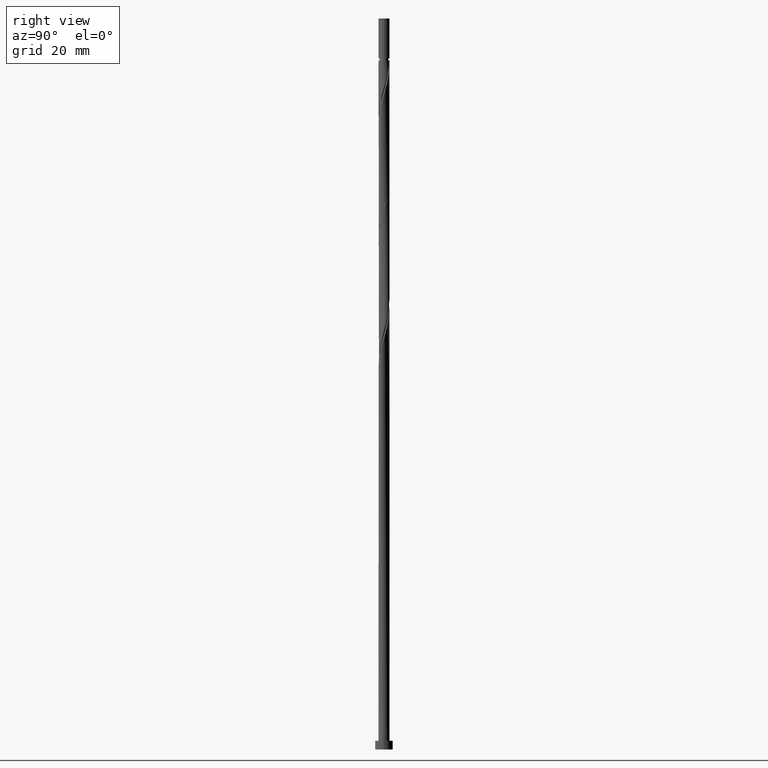
[diagram: clean part render]
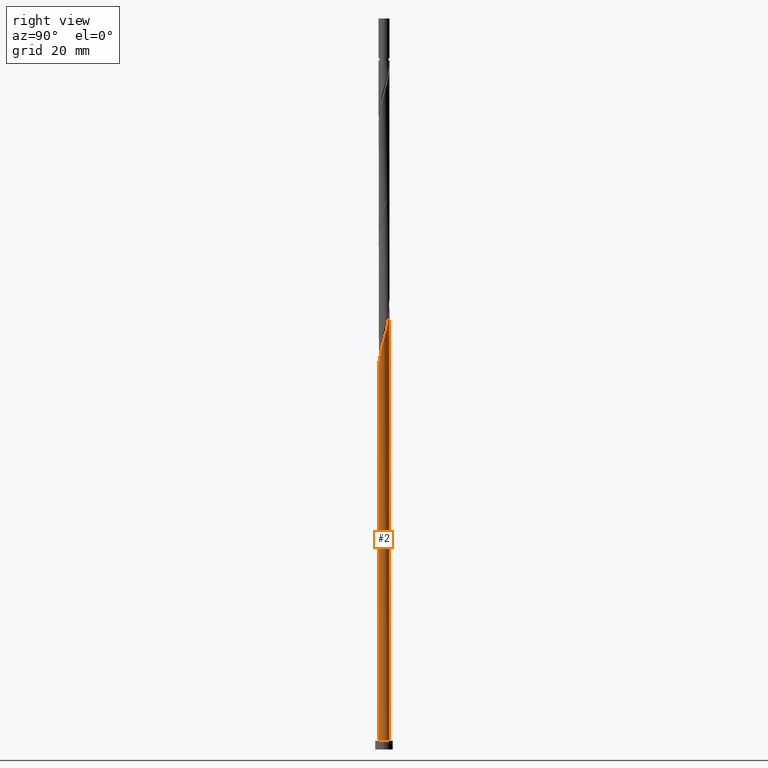
[diagram: same view with one face highlighted and labeled with its STEP entity id]
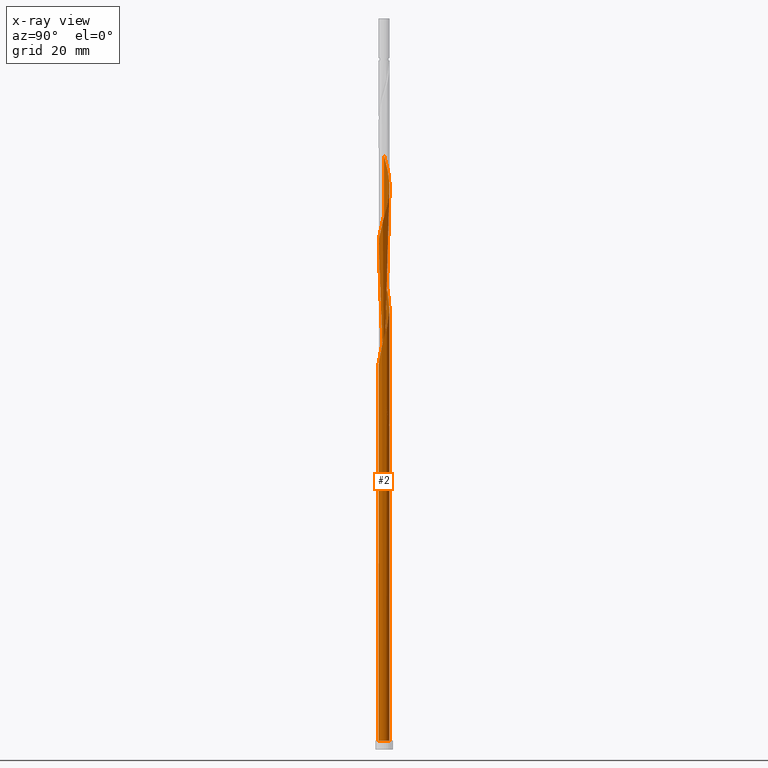
[diagram: x-ray of the same camera — body ghosted, the highlighted face saturated]
A machine part, right view. The second image highlights one B-rep face of the part: STEP entity #2.
The next image is the same camera in x-ray: the body ghosted, the highlighted face saturated — about 0% of this face is hidden behind the body in this view.
In plain terms, the highlighted cylindrical surface (bore or boss wall) has radius 0.95 mm, axis along (-0, -0, -1).
Its self-contained STEP definition (entity closure, byte-faithful):
#2 = ADVANCED_FACE ( 'NONE', ( #476 ), #1264, .T. ) ;
#3 = CARTESIAN_POINT ( 'NONE',  ( 0.5311792622899488281, 0.8018655580792055648, 94.37237604286049475 ) ) ;
#15 = CARTESIAN_POINT ( 'NONE',  ( -0.9310000000000014930, -0.1890476130502580510, 81.35154270952716615 ) ) ;
#17 = DIRECTION ( 'NONE',  ( -0.000000000000000000, -0.000000000000000000, -1.000000000000000000 ) ) ;
#23 = CARTESIAN_POINT ( 'NONE',  ( -0.9500000000000016209, -9.220758211671433258E-16, 59.85340693472357998 ) ) ;
#61 = CARTESIAN_POINT ( 'NONE',  ( 0.000000000000000000, 0.000000000000000000, 1.500000000000000000 ) ) ;
#71 = CARTESIAN_POINT ( 'NONE',  ( 0.5311792622899488281, 0.8018655580792055648, 73.53904270952716615 ) ) ;
#103 = CARTESIAN_POINT ( 'NONE',  ( 0.9310000000000014930, 0.1890476130502579399, 91.76820937619382335 ) ) ;
#109 = CARTESIAN_POINT ( 'NONE',  ( -0.3365035269924015471, 0.9010577996123467770, 97.49737604286049475 ) ) ;
#114 = CARTESIAN_POINT ( 'NONE',  ( 0.1078998574815841355, 0.9438525418493384223, 95.93487604286050896 ) ) ;
#116 = ORIENTED_EDGE ( 'NONE', *, *, #710, .T. ) ;
#122 = CARTESIAN_POINT ( 'NONE',  ( -0.1890476130502578012, 0.9310000000000014930, 55.30987604286050185 ) ) ;
#123 = VECTOR ( 'NONE', #816, 1000.000000000000000 ) ;
#134 = CARTESIAN_POINT ( 'NONE',  ( -0.8018655580792057869, 0.5311792622899487171, 57.91404270952715905 ) ) ;
#152 = CARTESIAN_POINT ( 'NONE',  ( -0.9438525418493384223, 0.1078998574815839828, 59.47654270952718747 ) ) ;
#173 = CARTESIAN_POINT ( 'NONE',  ( -0.7001708015879715141, 0.6420754228310416867, 78.22654270952718036 ) ) ;
#181 = CARTESIAN_POINT ( 'NONE',  ( 0.5984760450967365752, -0.7529715833721342122, 67.28904270952716615 ) ) ;
#187 = CARTESIAN_POINT ( 'NONE',  ( -0.5311792622899487171, -0.8018655580792055648, 63.12237604286050185 ) ) ;
#194 = CARTESIAN_POINT ( 'NONE',  ( -0.1078998574815840522, -0.9438525418493384223, 64.68487604286050896 ) ) ;
#203 = CARTESIAN_POINT ( 'NONE',  ( 0.1890476130502579954, -0.9310000000000014930, 65.72654270952716615 ) ) ;
#208 = CARTESIAN_POINT ( 'NONE',  ( -0.1078998574815840522, -0.9438525418493384223, 85.51820937619385177 ) ) ;
#213 = CARTESIAN_POINT ( 'NONE',  ( 0.8270146914922410497, 0.4674897860445690334, 92.80987604286055159 ) ) ;
#232 = CARTESIAN_POINT ( 'NONE',  ( -0.9267628833110200803, 0.2573914140712822984, 100.6223760428604805 ) ) ;
#259 = CARTESIAN_POINT ( 'NONE',  ( -0.7001708015879715141, 0.6420754228310416867, 57.39320937619384466 ) ) ;
#260 = CARTESIAN_POINT ( 'NONE',  ( -0.9010577996123466660, 0.3365035269924016026, 59.99737604286049475 ) ) ;
#267 = CARTESIAN_POINT ( 'NONE',  ( -0.9499999999999999556, 0.000000000000000000, 1.500000000000000000 ) ) ;
#274 = LINE ( 'NONE', #466, #123 ) ;
#280 = CARTESIAN_POINT ( 'NONE',  ( 0.8643142206951132112, -0.3942853381806156743, 68.85154270952720879 ) ) ;
#304 = CARTESIAN_POINT ( 'NONE',  ( 0.9267628833110200803, -0.2573914140712823539, 69.37237604286052317 ) ) ;
#309 =( BOUNDED_CURVE ( )  B_SPLINE_CURVE ( 2, ( #1176, #612, #799, #260, #707, #588, #1278, #1262, #909, #1169, #1253, #1030, #1046 ),
 .UNSPECIFIED., .F., .T. ) 
 B_SPLINE_CURVE_WITH_KNOTS ( ( 3, 2, 2, 2, 2, 2, 3 ),
 ( 0.9295322023138553602, 0.9375000000000000000, 0.9499999999999999556, 0.9625000000000000222, 0.9749999999999999778, 0.9875000000000000444, 1.000000000000000000 ),
 .UNSPECIFIED. ) 
 CURVE ( )  GEOMETRIC_REPRESENTATION_ITEM ( )  RATIONAL_B_SPLINE_CURVE ( ( 0.9039174447099483922, 0.9019565955404780233, 0.9090909090909261581, 0.8978984914501423331, 0.9090909090909261581, 0.8978984914501423331, 0.9090909090909261581, 0.8978984914501423331, 0.9090909090909261581, 0.8978984914501423331, 0.9090909090909261581, 0.8978984914501423331, 0.9090909090909261581 ) ) 
 REPRESENTATION_ITEM ( '' )  );
#313 = CARTESIAN_POINT ( 'NONE',  ( -0.5984760450967366863, 0.7529715833721342122, 77.70570937619383756 ) ) ;
#320 = CARTESIAN_POINT ( 'NONE',  ( -0.7529715833721342122, -0.5984760450967366863, 82.91404270952716615 ) ) ;
#325 = CARTESIAN_POINT ( 'NONE',  ( -0.4674897860445692555, 0.8270146914922409387, 98.01820937619388019 ) ) ;
#334 = CARTESIAN_POINT ( 'NONE',  ( -0.8643142206951133222, 0.3942853381806155633, 100.1015427095272088 ) ) ;
#341 = CARTESIAN_POINT ( 'NONE',  ( -0.2573914140712822984, -0.9267628833110200803, 84.99737604286049475 ) ) ;
#380 = CARTESIAN_POINT ( 'NONE',  ( 0.000000000000000000, 0.000000000000000000, 1.500000000000000000 ) ) ;
#386 = AXIS2_PLACEMENT_3D ( 'NONE', #61, #482, #823 ) ;
#404 = EDGE_LOOP ( 'NONE', ( #1078, #1188, #1080, #116, #854, #473, #785, #1028, #639 ) ) ;
#406 = CARTESIAN_POINT ( 'NONE',  ( -0.3942853381806156743, -0.8643142206951132112, 63.64320937619383045 ) ) ;
#413 = CARTESIAN_POINT ( 'NONE',  ( 0.8018655580792057869, -0.5311792622899488281, 68.33070937619382335 ) ) ;
#425 = VERTEX_POINT ( 'NONE', #122 ) ;
#442 = CARTESIAN_POINT ( 'NONE',  ( 0.6420754228310419087, 0.7001708015879714031, 93.85154270952719457 ) ) ;
#447 = CARTESIAN_POINT ( 'NONE',  ( -0.1890476130502579122, 0.9310000000000014930, 96.97654270952718036 ) ) ;
#466 = CARTESIAN_POINT ( 'NONE',  ( -0.9499999999999999556, 0.000000000000000000, 125.0000000000000000 ) ) ;
#473 = ORIENTED_EDGE ( 'NONE', *, *, #1006, .F. ) ;
#476 = FACE_OUTER_BOUND ( 'NONE', #404, .T. ) ;
#482 = DIRECTION ( 'NONE',  ( 0.000000000000000000, 0.000000000000000000, 1.000000000000000000 ) ) ;
#485 = DIRECTION ( 'NONE',  ( -0.000000000000000000, -0.000000000000000000, -1.000000000000000000 ) ) ;
#504 = CIRCLE ( 'NONE', #967, 0.9499999999999999556 ) ;
#506 = CARTESIAN_POINT ( 'NONE',  ( -0.9500000000000012879, -0.09547859244962596248, 60.18771151013140752 ) ) ;
#514 = CARTESIAN_POINT ( 'NONE',  ( -0.8643142206951133222, 0.3942853381806155633, 79.26820937619383756 ) ) ;
#520 = CARTESIAN_POINT ( 'NONE',  ( -0.9500000000000016209, -9.220758211671433258E-16, 59.85340693472357998 ) ) ;
#533 = VERTEX_POINT ( 'NONE', #1145 ) ;
#537 = CARTESIAN_POINT ( 'NONE',  ( -0.04159169910811427728, 0.9609422003876559870, 75.62237604286049475 ) ) ;
#545 = CARTESIAN_POINT ( 'NONE',  ( -0.9438525418493384223, 0.1078998574815839828, 101.1432093761938802 ) ) ;
#552 = CARTESIAN_POINT ( 'NONE',  ( 0.8018655580792057869, -0.5311792622899488281, 89.16404270952718036 ) ) ;
#558 = CARTESIAN_POINT ( 'NONE',  ( -0.5984760450967366863, 0.7529715833721342122, 98.53904270952715194 ) ) ;
#580 = DIRECTION ( 'NONE',  ( 1.000000000000000000, 0.000000000000000000, 0.000000000000000000 ) ) ;
#588 = CARTESIAN_POINT ( 'NONE',  ( -0.7529715833721342122, 0.5984760450967366863, 58.95570937619383756 ) ) ;
#593 = CARTESIAN_POINT ( 'NONE',  ( -0.9500000000000016209, 0.05412505057411069048, 59.66389584551629355 ) ) ;
#594 = VERTEX_POINT ( 'NONE', #23 ) ;
#595 = DIRECTION ( 'NONE',  ( 0.000000000000000000, 0.000000000000000000, 1.000000000000000000 ) ) ;
#612 = CARTESIAN_POINT ( 'NONE',  ( -0.9500000000000008438, 0.09547859244962712821, 60.84870724225625338 ) ) ;
#631 = CARTESIAN_POINT ( 'NONE',  ( 0.1078998574815841355, 0.9438525418493384223, 75.10154270952718036 ) ) ;
#639 = ORIENTED_EDGE ( 'NONE', *, *, #815, .F. ) ;
#640 = CARTESIAN_POINT ( 'NONE',  ( 0.8270146914922410497, 0.4674897860445690334, 71.97654270952720879 ) ) ;
#646 = VERTEX_POINT ( 'NONE', #1286 ) ;
#653 = CARTESIAN_POINT ( 'NONE',  ( 0.3365035269924014361, -0.9010577996123467770, 87.08070937619386598 ) ) ;
#654 =( BOUNDED_CURVE ( )  B_SPLINE_CURVE ( 2, ( #938, #1400, #1269, #1277, #259, #134, #706, #1159, #152, #593, #1045 ),
 .UNSPECIFIED., .F., .T. ) 
 B_SPLINE_CURVE_WITH_KNOTS ( ( 3, 2, 2, 2, 2, 3 ),
 ( 0.000000000000000000, 0.01249999999999995559, 0.02500000000000002220, 0.03749999999999997780, 0.05000000000000004441, 0.05453220231385526307 ),
 .UNSPECIFIED. ) 
 CURVE ( )  GEOMETRIC_REPRESENTATION_ITEM ( )  RATIONAL_B_SPLINE_CURVE ( ( 0.9090909090909261581, 0.8978984914501423331, 0.9090909090909261581, 0.8978984914501423331, 0.9090909090909261581, 0.8978984914501423331, 0.9090909090909261581, 0.8978984914501423331, 0.9090909090909261581, 0.9050328050005906899, 0.9039174447099487253 ) ) 
 REPRESENTATION_ITEM ( '' )  );
#659 = CARTESIAN_POINT ( 'NONE',  ( -0.9609422003876559870, -0.04159169910811449933, 80.83070937619382335 ) ) ;
#667 = EDGE_CURVE ( 'NONE', #1086, #533, #274, .T. ) ;
#669 = CARTESIAN_POINT ( 'NONE',  ( 0.4674897860445690889, -0.8270146914922410497, 87.60154270952718036 ) ) ;
#673 = CARTESIAN_POINT ( 'NONE',  ( 0.8643142206951132112, -0.3942853381806156743, 89.68487604286053738 ) ) ;
#686 = CIRCLE ( 'NONE', #386, 0.9499999999999999556 ) ;
#706 = CARTESIAN_POINT ( 'NONE',  ( -0.8643142206951133222, 0.3942853381806155633, 58.43487604286050896 ) ) ;
#707 = CARTESIAN_POINT ( 'NONE',  ( -0.8270146914922408277, 0.4674897860445692555, 59.47654270952718747 ) ) ;
#709 = CIRCLE ( 'NONE', #941, 0.9499999999999999556 ) ;
#710 = EDGE_CURVE ( 'NONE', #1206, #646, #709, .T. ) ;
#730 = CARTESIAN_POINT ( 'NONE',  ( 0.9310000000000014930, 0.1890476130502579399, 70.93487604286052317 ) ) ;
#736 = CARTESIAN_POINT ( 'NONE',  ( -0.6420754228310416867, -0.7001708015879714031, 62.60154270952718036 ) ) ;
#742 = CARTESIAN_POINT ( 'NONE',  ( 0.7529715833721343232, 0.5984760450967365752, 72.49737604286049475 ) ) ;
#751 = CARTESIAN_POINT ( 'NONE',  ( -0.8270146914922410497, -0.4674897860445691444, 61.55987604286052317 ) ) ;
#762 = CARTESIAN_POINT ( 'NONE',  ( -0.8018655580792057869, 0.5311792622899487171, 78.74737604286052317 ) ) ;
#769 = CARTESIAN_POINT ( 'NONE',  ( 0.1890476130502579954, -0.9310000000000014930, 86.55987604286052317 ) ) ;
#774 = CARTESIAN_POINT ( 'NONE',  ( -0.3942853381806156743, -0.8643142206951132112, 84.47654270952720879 ) ) ;
#776 = CARTESIAN_POINT ( 'NONE',  ( -0.9500000000000013989, -4.347999807129618746E-16, 101.5200736013902514 ) ) ;
#779 = CARTESIAN_POINT ( 'NONE',  ( 0.3942853381806157853, 0.8643142206951133222, 94.89320937619388019 ) ) ;
#785 = ORIENTED_EDGE ( 'NONE', *, *, #1215, .F. ) ;
#789 = CARTESIAN_POINT ( 'NONE',  ( 0.9438525418493384223, -0.1078998574815840522, 90.72654270952718036 ) ) ;
#799 = CARTESIAN_POINT ( 'NONE',  ( -0.9310000000000014930, 0.1890476130502582175, 60.51820937619385177 ) ) ;
#807 = CARTESIAN_POINT ( 'NONE',  ( 0.1890476130502582730, 0.9310000000000014930, 55.30987604286050185 ) ) ;
#812 = VERTEX_POINT ( 'NONE', #807 ) ;
#815 = EDGE_CURVE ( 'NONE', #533, #812, #309, .T. ) ;
#816 = DIRECTION ( 'NONE',  ( -0.000000000000000000, -0.000000000000000000, -1.000000000000000000 ) ) ;
#823 = DIRECTION ( 'NONE',  ( 1.000000000000000000, 0.000000000000000000, 0.000000000000000000 ) ) ;
#840 = CARTESIAN_POINT ( 'NONE',  ( -0.9310000000000014930, -0.1890476130502580510, 60.51820937619385177 ) ) ;
#847 = CARTESIAN_POINT ( 'NONE',  ( -0.7529715833721342122, -0.5984760450967366863, 62.08070937619382335 ) ) ;
#854 = ORIENTED_EDGE ( 'NONE', *, *, #1166, .T. ) ;
#855 = CARTESIAN_POINT ( 'NONE',  ( 0.9438525418493384223, -0.1078998574815840522, 69.89320937619385177 ) ) ;
#876 = VECTOR ( 'NONE', #17, 1000.000000000000000 ) ;
#885 = CARTESIAN_POINT ( 'NONE',  ( -0.04159169910811427728, 0.9609422003876559870, 96.45570937619380913 ) ) ;
#892 = CARTESIAN_POINT ( 'NONE',  ( -0.7001708015879715141, 0.6420754228310416867, 99.05987604286053738 ) ) ;
#909 = CARTESIAN_POINT ( 'NONE',  ( -0.3942853381806155633, 0.8643142206951131001, 57.39320937619384466 ) ) ;
#938 = CARTESIAN_POINT ( 'NONE',  ( -0.1890476130502578012, 0.9310000000000014930, 55.30987604286050185 ) ) ;
#941 = AXIS2_PLACEMENT_3D ( 'NONE', #380, #595, #580 ) ;
#945 = CARTESIAN_POINT ( 'NONE',  ( 0.3365035269924014361, -0.9010577996123467770, 66.24737604286050896 ) ) ;
#954 = CARTESIAN_POINT ( 'NONE',  ( -0.9267628833110200803, 0.2573914140712822984, 79.78904270952715194 ) ) ;
#967 = AXIS2_PLACEMENT_3D ( 'NONE', #1389, #1284, #1168 ) ;
#972 = CARTESIAN_POINT ( 'NONE',  ( 0.9010577996123467770, 0.3365035269924014361, 71.45570937619382335 ) ) ;
#980 = CARTESIAN_POINT ( 'NONE',  ( -0.3365035269924015471, 0.9010577996123467770, 76.66404270952716615 ) ) ;
#996 = CARTESIAN_POINT ( 'NONE',  ( -0.8270146914922410497, -0.4674897860445691444, 82.39320937619389440 ) ) ;
#1000 = CARTESIAN_POINT ( 'NONE',  ( 0.7001708015879714031, -0.6420754228310416867, 88.64320937619385177 ) ) ;
#1006 = EDGE_CURVE ( 'NONE', #594, #1206, #1246, .T. ) ;
#1011 = DIRECTION ( 'NONE',  ( -1.000000000000000000, 0.000000000000000000, 0.000000000000000000 ) ) ;
#1028 = ORIENTED_EDGE ( 'NONE', *, *, #1290, .T. ) ;
#1030 = CARTESIAN_POINT ( 'NONE',  ( 0.04159169910811453402, 0.9609422003876559870, 55.83070937619383045 ) ) ;
#1045 = CARTESIAN_POINT ( 'NONE',  ( -0.9500000000000016209, -9.220758211671433258E-16, 59.85340693472357998 ) ) ;
#1046 = CARTESIAN_POINT ( 'NONE',  ( 0.1890476130502582730, 0.9310000000000014930, 55.30987604286050185 ) ) ;
#1054 = AXIS2_PLACEMENT_3D ( 'NONE', #1248, #485, #1011 ) ;
#1068 = CARTESIAN_POINT ( 'NONE',  ( 0.9609422003876559870, 0.04159169910811433279, 70.41404270952718036 ) ) ;
#1078 = ORIENTED_EDGE ( 'NONE', *, *, #667, .F. ) ;
#1080 = ORIENTED_EDGE ( 'NONE', *, *, #1006, .T. ) ;
#1086 = VERTEX_POINT ( 'NONE', #776 ) ;
#1091 = CARTESIAN_POINT ( 'NONE',  ( -0.1890476130502579122, 0.9310000000000014930, 76.14320937619386598 ) ) ;
#1106 = CARTESIAN_POINT ( 'NONE',  ( 0.5984760450967365752, -0.7529715833721342122, 88.12237604286048054 ) ) ;
#1112 = CARTESIAN_POINT ( 'NONE',  ( 0.2573914140712823539, 0.9267628833110200803, 95.41404270952715194 ) ) ;
#1121 = CARTESIAN_POINT ( 'NONE',  ( -0.6420754228310416867, -0.7001708015879714031, 83.43487604286053738 ) ) ;
#1127 = CARTESIAN_POINT ( 'NONE',  ( 0.9267628833110200803, -0.2573914140712823539, 90.20570937619383756 ) ) ;
#1137 = CARTESIAN_POINT ( 'NONE',  ( -0.9499999999999999556, 0.000000000000000000, 125.0000000000000000 ) ) ;
#1145 = CARTESIAN_POINT ( 'NONE',  ( -0.9500000000000016209, 1.049517194824390742E-15, 61.18301181766409513 ) ) ;
#1159 = CARTESIAN_POINT ( 'NONE',  ( -0.9267628833110200803, 0.2573914140712822984, 58.95570937619383756 ) ) ;
#1166 = EDGE_CURVE ( 'NONE', #646, #1206, #686, .T. ) ;
#1168 = DIRECTION ( 'NONE',  ( 0.000000000000000000, 1.000000000000000000, -2.191229653865440657E-14 ) ) ;
#1169 = CARTESIAN_POINT ( 'NONE',  ( -0.2573914140712821874, 0.9267628833110201914, 56.87237604286050185 ) ) ;
#1176 = CARTESIAN_POINT ( 'NONE',  ( -0.9500000000000016209, 1.049517194824390742E-15, 61.18301181766409513 ) ) ;
#1182 = CARTESIAN_POINT ( 'NONE',  ( 0.3942853381806157853, 0.8643142206951133222, 74.05987604286053738 ) ) ;
#1188 = ORIENTED_EDGE ( 'NONE', *, *, #1438, .F. ) ;
#1190 = CARTESIAN_POINT ( 'NONE',  ( -0.2573914140712822984, -0.9267628833110200803, 64.16404270952716615 ) ) ;
#1198 = CARTESIAN_POINT ( 'NONE',  ( 0.2573914140712823539, 0.9267628833110200803, 74.58070937619386598 ) ) ;
#1206 = VERTEX_POINT ( 'NONE', #267 ) ;
#1207 = CARTESIAN_POINT ( 'NONE',  ( 0.6420754228310419087, 0.7001708015879714031, 73.01820937619382335 ) ) ;
#1215 = EDGE_CURVE ( 'NONE', #425, #594, #654, .T. ) ;
#1227 = CARTESIAN_POINT ( 'NONE',  ( -0.9010577996123467770, -0.3365035269924014916, 81.87237604286050896 ) ) ;
#1234 = CARTESIAN_POINT ( 'NONE',  ( -0.9500000000000013989, -4.347999807129618746E-16, 101.5200736013902372 ) ) ;
#1240 = CARTESIAN_POINT ( 'NONE',  ( 0.04159169910811438831, -0.9609422003876559870, 86.03904270952716615 ) ) ;
#1246 = LINE ( 'NONE', #1137, #876 ) ;
#1248 = CARTESIAN_POINT ( 'NONE',  ( 0.000000000000000000, 0.000000000000000000, 125.0000000000000000 ) ) ;
#1253 = CARTESIAN_POINT ( 'NONE',  ( -0.1078998574815839273, 0.9438525418493383112, 56.35154270952720168 ) ) ;
#1258 =( BOUNDED_CURVE ( )  B_SPLINE_CURVE ( 2, ( #520, #506, #840, #1316, #751, #847, #736, #187, #406, #1190, #194, #1421, #203, #945, #1407, #181, #1292, #413, #280, #304, #855, #1068, #730, #972, #640, #742, #1207, #71, #1182, #1198, #631, #537, #1091, #980, #1322, #313, #173, #762, #514, #954, #1416, #659, #15, #1227, #996, #320, #1121, #1329, #774, #341, #208, #1240, #769, #653, #669, #1106, #1000, #552, #673, #1127, #789, #1443, #103, #1451, #213, #1334, #442, #3, #779, #1112, #114, #885, #447, #109, #325, #558, #892, #1341, #334, #232, #545, #1348, #1234 ),
 .UNSPECIFIED., .F., .T. ) 
 B_SPLINE_CURVE_WITH_KNOTS ( ( 3, 2, 2, 2, 2, 2, 2, 2, 2, 2, 2, 2, 2, 2, 2, 2, 2, 2, 2, 2, 2, 2, 2, 2, 2, 2, 2, 2, 2, 2, 2, 2, 2, 2, 2, 2, 2, 2, 2, 2, 2, 3 ),
 ( 0.05453220231385527000, 0.06250000000000000000, 0.07499999999999995559, 0.08750000000000002220, 0.09999999999999997780, 0.1125000000000000444, 0.1250000000000000000, 0.1374999999999999556, 0.1500000000000000222, 0.1624999999999999778, 0.1750000000000000444, 0.1875000000000000000, 0.1999999999999999556, 0.2125000000000000222, 0.2249999999999999778, 0.2375000000000000444, 0.2500000000000000000, 0.2624999999999999556, 0.2750000000000000222, 0.2874999999999999778, 0.3000000000000000444, 0.3125000000000000000, 0.3249999999999999556, 0.3375000000000000222, 0.3499999999999999778, 0.3625000000000000444, 0.3750000000000000000, 0.3874999999999999556, 0.4000000000000000222, 0.4124999999999999778, 0.4250000000000000444, 0.4375000000000000000, 0.4499999999999999556, 0.4625000000000000222, 0.4749999999999999778, 0.4875000000000000444, 0.5000000000000000000, 0.5124999999999999556, 0.5250000000000000222, 0.5374999999999999778, 0.5500000000000000444, 0.5545322023138553602 ),
 .UNSPECIFIED. ) 
 CURVE ( )  GEOMETRIC_REPRESENTATION_ITEM ( )  RATIONAL_B_SPLINE_CURVE ( ( 0.9039174447099487253, 0.9019565955404780233, 0.9090909090909261581, 0.8978984914501423331, 0.9090909090909261581, 0.8978984914501423331, 0.9090909090909261581, 0.8978984914501423331, 0.9090909090909261581, 0.8978984914501423331, 0.9090909090909261581, 0.8978984914501423331, 0.9090909090909261581, 0.8978984914501423331, 0.9090909090909261581, 0.8978984914501423331, 0.9090909090909261581, 0.8978984914501423331, 0.9090909090909261581, 0.8978984914501423331, 0.9090909090909261581, 0.8978984914501423331, 0.9090909090909261581, 0.8978984914501423331, 0.9090909090909261581, 0.8978984914501423331, 0.9090909090909261581, 0.8978984914501423331, 0.9090909090909261581, 0.8978984914501423331, 0.9090909090909261581, 0.8978984914501423331, 0.9090909090909261581, 0.8978984914501423331, 0.9090909090909261581, 0.8978984914501423331, 0.9090909090909261581, 0.8978984914501423331, 0.9090909090909261581, 0.8978984914501423331, 0.9090909090909261581, 0.8978984914501423331, 0.9090909090909261581, 0.8978984914501423331, 0.9090909090909261581, 0.8978984914501423331, 0.9090909090909261581, 0.8978984914501423331, 0.9090909090909261581, 0.8978984914501423331, 0.9090909090909261581, 0.8978984914501423331, 0.9090909090909261581, 0.8978984914501423331, 0.9090909090909261581, 0.8978984914501423331, 0.9090909090909261581, 0.8978984914501423331, 0.9090909090909261581, 0.8978984914501423331, 0.9090909090909261581, 0.8978984914501423331, 0.9090909090909261581, 0.8978984914501423331, 0.9090909090909261581, 0.8978984914501423331, 0.9090909090909261581, 0.8978984914501423331, 0.9090909090909261581, 0.8978984914501423331, 0.9090909090909261581, 0.8978984914501423331, 0.9090909090909261581, 0.8978984914501423331, 0.9090909090909261581, 0.8978984914501423331, 0.9090909090909261581, 0.8978984914501423331, 0.9090909090909261581, 0.8978984914501423331, 0.9090909090909261581, 0.9050328050005904679, 0.9039174447099483922 ) ) 
 REPRESENTATION_ITEM ( '' )  );
#1262 = CARTESIAN_POINT ( 'NONE',  ( -0.5311792622899487171, 0.8018655580792057869, 57.91404270952715905 ) ) ;
#1264 = CYLINDRICAL_SURFACE ( 'NONE', #1054, 0.9499999999999999556 ) ;
#1269 = CARTESIAN_POINT ( 'NONE',  ( -0.4674897860445692555, 0.8270146914922409387, 56.35154270952720168 ) ) ;
#1277 = CARTESIAN_POINT ( 'NONE',  ( -0.5984760450967366863, 0.7529715833721342122, 56.87237604286050185 ) ) ;
#1278 = CARTESIAN_POINT ( 'NONE',  ( -0.6420754228310416867, 0.7001708015879715141, 58.43487604286050896 ) ) ;
#1284 = DIRECTION ( 'NONE',  ( 0.000000000000000000, -1.826024711554535195E-14, -1.000000000000000000 ) ) ;
#1286 = CARTESIAN_POINT ( 'NONE',  ( 0.9499999999999999556, 0.000000000000000000, 1.500000000000000000 ) ) ;
#1290 = EDGE_CURVE ( 'NONE', #425, #812, #504, .T. ) ;
#1292 = CARTESIAN_POINT ( 'NONE',  ( 0.7001708015879714031, -0.6420754228310416867, 67.80987604286050896 ) ) ;
#1316 = CARTESIAN_POINT ( 'NONE',  ( -0.9010577996123467770, -0.3365035269924014916, 61.03904270952716615 ) ) ;
#1322 = CARTESIAN_POINT ( 'NONE',  ( -0.4674897860445692555, 0.8270146914922409387, 77.18487604286053738 ) ) ;
#1329 = CARTESIAN_POINT ( 'NONE',  ( -0.5311792622899487171, -0.8018655580792055648, 83.95570937619383756 ) ) ;
#1334 = CARTESIAN_POINT ( 'NONE',  ( 0.7529715833721343232, 0.5984760450967365752, 93.33070937619383756 ) ) ;
#1341 = CARTESIAN_POINT ( 'NONE',  ( -0.8018655580792057869, 0.5311792622899487171, 99.58070937619382335 ) ) ;
#1348 = CARTESIAN_POINT ( 'NONE',  ( -0.9500000000000016209, 0.05412505057410960801, 101.3305625121829934 ) ) ;
#1389 = CARTESIAN_POINT ( 'NONE',  ( 0.000000000000000000, 0.000000000000000000, 55.30987604286051607 ) ) ;
#1400 = CARTESIAN_POINT ( 'NONE',  ( -0.3365035269924015471, 0.9010577996123467770, 55.83070937619383045 ) ) ;
#1407 = CARTESIAN_POINT ( 'NONE',  ( 0.4674897860445690889, -0.8270146914922410497, 66.76820937619386598 ) ) ;
#1416 = CARTESIAN_POINT ( 'NONE',  ( -0.9438525418493384223, 0.1078998574815839828, 80.30987604286050896 ) ) ;
#1421 = CARTESIAN_POINT ( 'NONE',  ( 0.04159169910811438831, -0.9609422003876559870, 65.20570937619382335 ) ) ;
#1438 = EDGE_CURVE ( 'NONE', #594, #1086, #1258, .T. ) ;
#1443 = CARTESIAN_POINT ( 'NONE',  ( 0.9609422003876559870, 0.04159169910811433279, 91.24737604286048054 ) ) ;
#1451 = CARTESIAN_POINT ( 'NONE',  ( 0.9010577996123467770, 0.3365035269924014361, 92.28904270952716615 ) ) ;